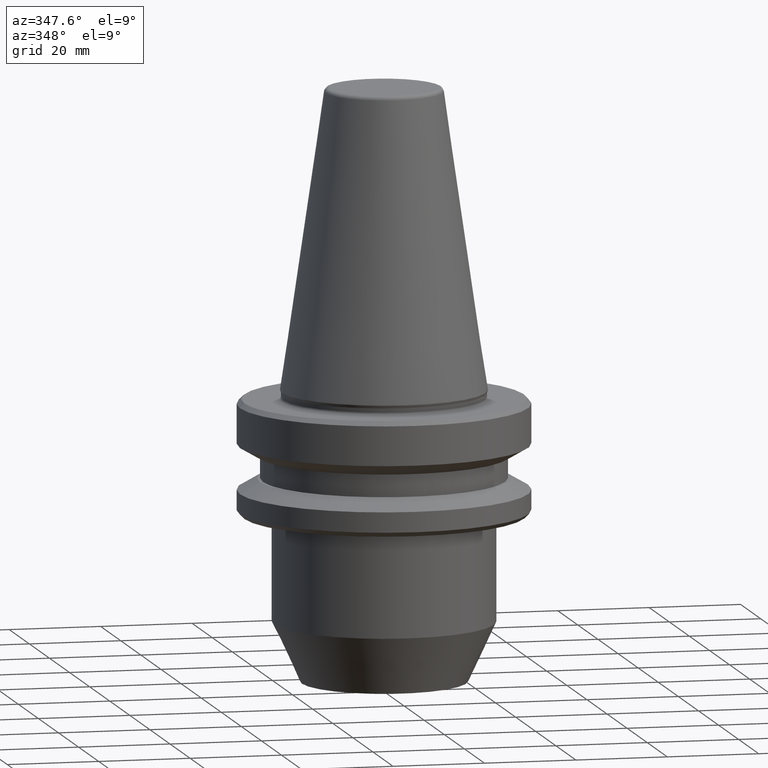
[diagram: clean part render]
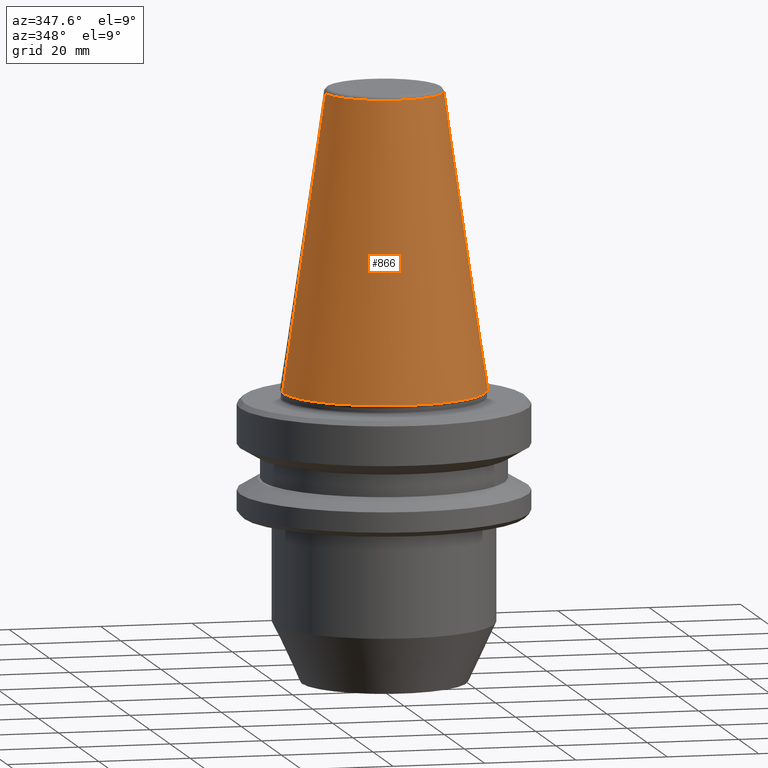
[diagram: same view with one face highlighted and labeled with its STEP entity id]
A machine part, auxiliary view. The second image highlights one B-rep face of the part: STEP entity #866.
In plain terms, the highlighted conical surface has half-angle 8.297 deg.
Its self-contained STEP definition (entity closure, byte-faithful):
#30 = VERTEX_POINT ( 'NONE', #285 ) ;
#33 = VERTEX_POINT ( 'NONE', #371 ) ;
#74 = AXIS2_PLACEMENT_3D ( 'NONE', #530, #818, #254 ) ;
#92 = LINE ( 'NONE', #412, #548 ) ;
#129 = AXIS2_PLACEMENT_3D ( 'NONE', #522, #872, #584 ) ;
#151 = VECTOR ( 'NONE', #508, 999.9999999999998900 ) ;
#155 = EDGE_LOOP ( 'NONE', ( #826, #184, #991, #434 ) ) ;
#177 = VERTEX_POINT ( 'NONE', #476 ) ;
#178 = CARTESIAN_POINT ( 'NONE',  ( -12.81220206925713600, 1.569042225414484800E-015, 65.23302140054848100 ) ) ;
#184 = ORIENTED_EDGE ( 'NONE', *, *, #601, .F. ) ;
#222 = CARTESIAN_POINT ( 'NONE',  ( 0.0000000000000000000, 0.0000000000000000000, 65.23302140054848100 ) ) ;
#254 = DIRECTION ( 'NONE',  ( 1.000000000000000000, 0.0000000000000000000, 0.0000000000000000000 ) ) ;
#265 = AXIS2_PLACEMENT_3D ( 'NONE', #222, #328, #986 ) ;
#285 = CARTESIAN_POINT ( 'NONE',  ( 22.22499999999971700, 0.0000000000000000000, 0.6887132116596417200 ) ) ;
#328 = DIRECTION ( 'NONE',  ( -0.0000000000000000000, -0.0000000000000000000, 1.000000000000000000 ) ) ;
#334 = DIRECTION ( 'NONE',  ( -0.1443081888881784800, 0.0000000000000000000, -0.9895327920891828800 ) ) ;
#371 = CARTESIAN_POINT ( 'NONE',  ( 12.81220206925713600, 0.0000000000000000000, 65.23302140054848100 ) ) ;
#412 = CARTESIAN_POINT ( 'NONE',  ( -22.22499999999971700, 0.0000000000000000000, 0.6887132116596417200 ) ) ;
#434 = ORIENTED_EDGE ( 'NONE', *, *, #905, .T. ) ;
#476 = CARTESIAN_POINT ( 'NONE',  ( -22.22499999999971700, 2.721777511104957700E-015, 0.6887132116596417200 ) ) ;
#508 = DIRECTION ( 'NONE',  ( 0.1443081888881784800, 1.767265616126594100E-017, -0.9895327920891828800 ) ) ;
#522 = CARTESIAN_POINT ( 'NONE',  ( 0.0000000000000000000, 0.0000000000000000000, 0.6887132116596417200 ) ) ;
#530 = CARTESIAN_POINT ( 'NONE',  ( 0.0000000000000000000, 0.0000000000000000000, 0.6887132116596417200 ) ) ;
#548 = VECTOR ( 'NONE', #334, 999.9999999999998900 ) ;
#579 = CARTESIAN_POINT ( 'NONE',  ( 22.22499999999971700, 2.721777511104957700E-015, 0.6887132116596417200 ) ) ;
#584 = DIRECTION ( 'NONE',  ( -1.000000000000000000, 0.0000000000000000000, 0.0000000000000000000 ) ) ;
#594 = CONICAL_SURFACE ( 'NONE', #129, 22.22499999999971700, 0.1448138077623186700 ) ;
#601 = EDGE_CURVE ( 'NONE', #840, #33, #743, .T. ) ;
#743 = CIRCLE ( 'NONE', #265, 12.81220206925715000 ) ;
#787 = LINE ( 'NONE', #579, #151 ) ;
#810 = FACE_OUTER_BOUND ( 'NONE', #155, .T. ) ;
#818 = DIRECTION ( 'NONE',  ( -0.0000000000000000000, -0.0000000000000000000, 1.000000000000000000 ) ) ;
#826 = ORIENTED_EDGE ( 'NONE', *, *, #869, .F. ) ;
#840 = VERTEX_POINT ( 'NONE', #178 ) ;
#866 = ADVANCED_FACE ( 'NONE', ( #810 ), #594, .T. ) ;
#869 = EDGE_CURVE ( 'NONE', #33, #30, #787, .T. ) ;
#872 = DIRECTION ( 'NONE',  ( 0.0000000000000000000, 0.0000000000000000000, -1.000000000000000000 ) ) ;
#904 = EDGE_CURVE ( 'NONE', #840, #177, #92, .T. ) ;
#905 = EDGE_CURVE ( 'NONE', #177, #30, #947, .T. ) ;
#947 = CIRCLE ( 'NONE', #74, 22.22499999999971700 ) ;
#986 = DIRECTION ( 'NONE',  ( 1.000000000000000000, 0.0000000000000000000, 0.0000000000000000000 ) ) ;
#991 = ORIENTED_EDGE ( 'NONE', *, *, #904, .T. ) ;